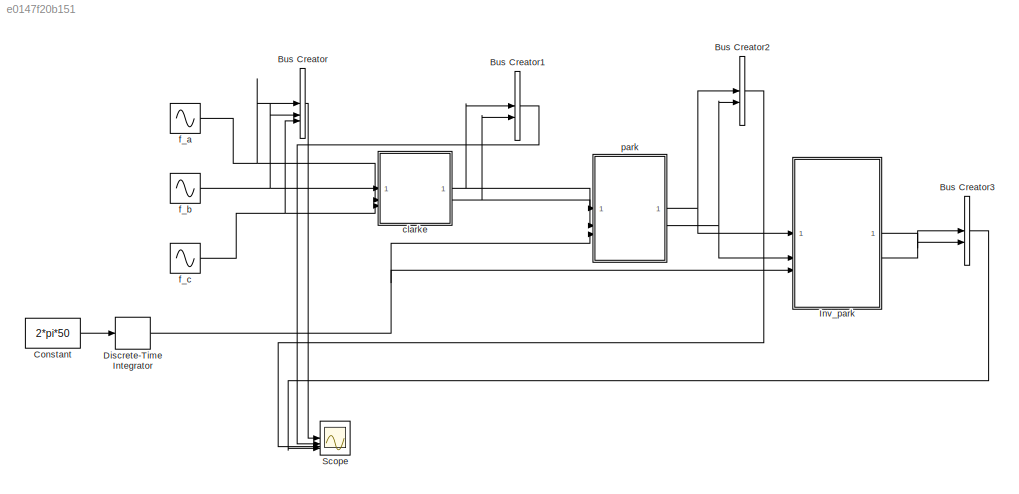
MODEL slx_e0147f20b151
KIND model
CONFIG AbsTol = auto
CONFIG EnableMultiTasking = off
CONFIG FixedStep = auto
CONFIG MaxStep = auto
CONFIG MinStep = auto
CONFIG RelTol = 1e-3
CONFIG SampleTimeConstraint = Unconstrained
CONFIG SolverName = VariableStepAuto
CONFIG StartTime = 0.0
CONFIG StopTime = 10.0
BLOCK [BusCreator] Bus Creator
  DisplayOption = bar
  InheritFromInputs = on
  Inputs = 3
BLOCK [BusCreator] Bus Creator1
  DisplayOption = bar
  InheritFromInputs = on
  Inputs = 2
BLOCK [BusCreator] Bus Creator2
  DisplayOption = bar
  InheritFromInputs = on
  Inputs = 2
BLOCK [BusCreator] Bus Creator3
  DisplayOption = bar
  InheritFromInputs = on
  Inputs = 2
BLOCK [Constant] Constant
  Value = 2*pi*50
BLOCK [DiscreteIntegrator] Discrete-Time Integrator
  ICPrevOutput = DiscIntNeverNeededParam
  ICPrevScaledInput = DiscIntNeverNeededParam
  InitialConditionSetting = Auto
  SampleTime = -1
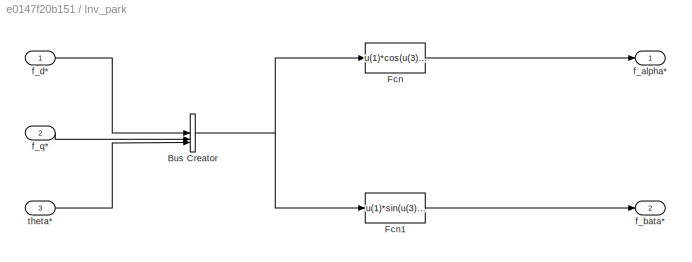
BLOCK [SubSystem] Inv_park
BLOCK [BusCreator] Inv_park/Bus Creator
  DisplayOption = bar
  InheritFromInputs = on
  Inputs = 3
BLOCK [Fcn] Inv_park/Fcn
  Expr = u(1)*cos(u(3))-u(2)*sin(u(3))
BLOCK [Fcn] Inv_park/Fcn1
  Expr = u(1)*sin(u(3))+u(2)*cos(u(3))
BLOCK [Outport] Inv_park/f_alpha*
BLOCK [Outport] Inv_park/f_bata*
  Port = 2
BLOCK [Inport] Inv_park/f_d*
BLOCK [Inport] Inv_park/f_q*
  Port = 2
BLOCK [Inport] Inv_park/theta*
  Port = 3
BLOCK [Scope] Scope
  Floating = off
  NumInputPorts = 4
  ScopeSpecificationString = Simulink.scopes.TimeScopeBlockCfg('CurrentConfiguration', extmgr.ConfigurationSet(extmgr.Configuration('Core','General UI',true),extmgr.Configuration('Core','Source UI',true),extmgr.Configuration('Sources','WiredSimulink',true),extmgr.Configuration('Visuals','Time Domain',true,'SerializedDisplays',{struct('MinYLimReal','-1.25','MaxYLimReal','1.25','YLabelReal','','MinYLimMag','0.00000','MaxYLimMag...<+3491ch>
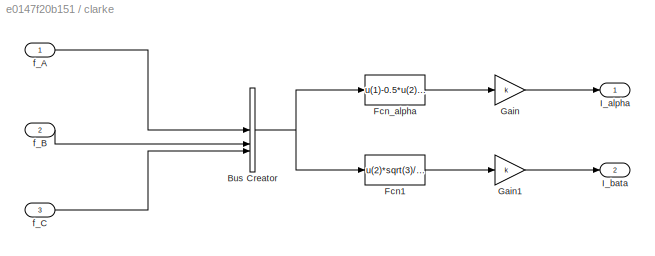
BLOCK [SubSystem] clarke
BLOCK [BusCreator] clarke/Bus Creator
  DisplayOption = bar
  InheritFromInputs = on
  Inputs = 3
BLOCK [Fcn] clarke/Fcn1
  Expr = u(2)*sqrt(3)/2-u(3)*sqrt(3)/2
BLOCK [Fcn] clarke/Fcn_alpha
  Expr = u(1)-0.5*u(2)-0.5*u(3)
BLOCK [Gain] clarke/Gain
  Gain = k
BLOCK [Gain] clarke/Gain1
  Gain = k
BLOCK [Outport] clarke/I_alpha
BLOCK [Outport] clarke/I_bata
  Port = 2
BLOCK [Inport] clarke/f_A
BLOCK [Inport] clarke/f_B
  Port = 2
BLOCK [Inport] clarke/f_C
  Port = 3
BLOCK [Sin] f_a
  Frequency = 2*pi*50
  NameLocation = left
  SampleTime = 0.00001
BLOCK [Sin] f_b
  Frequency = 2*pi*50
  NameLocation = left
  Phase = -pi*2/3
  SampleTime = 0.00001
BLOCK [Sin] f_c
  Frequency = 2*pi*50
  NameLocation = left
  Phase = pi*2/3
  SampleTime = 0.00001
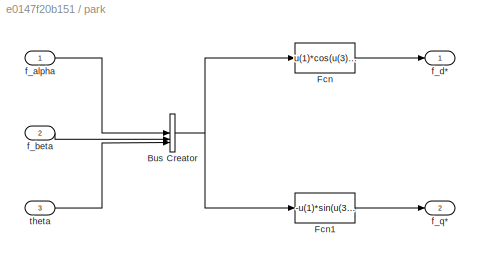
BLOCK [SubSystem] park
BLOCK [BusCreator] park/Bus Creator
  DisplayOption = bar
  InheritFromInputs = on
  Inputs = 3
BLOCK [Fcn] park/Fcn
  Expr = u(1)*cos(u(3))+u(2)*sin(u(3))
BLOCK [Fcn] park/Fcn1
  Expr = -u(1)*sin(u(3))+u(2)*cos(u(3))
BLOCK [Inport] park/f_alpha
BLOCK [Inport] park/f_beta
  Port = 2
BLOCK [Outport] park/f_d*
BLOCK [Outport] park/f_q*
  Port = 2
BLOCK [Inport] park/theta
  Port = 3
LINE Bus Creator1:1 -> Scope:2
LINE Bus Creator2:1 -> Scope:3
LINE Bus Creator3:1 -> Scope:4
LINE Bus Creator:1 -> Scope:1
LINE Constant:1 -> Discrete-Time Integrator:1
NET Discrete-Time Integrator:1 -> Inv_park:3, park:3
NET Inv_park/Bus Creator:1 -> Inv_park/Fcn1:1, Inv_park/Fcn:1
LINE Inv_park/Fcn1:1 -> Inv_park/f_bata*:1
LINE Inv_park/Fcn:1 -> Inv_park/f_alpha*:1
LINE Inv_park/f_d*:1 -> Inv_park/Bus Creator:1
LINE Inv_park/f_q*:1 -> Inv_park/Bus Creator:2
LINE Inv_park/theta*:1 -> Inv_park/Bus Creator:3
LINE Inv_park:1 -> Bus Creator3:1
LINE Inv_park:2 -> Bus Creator3:2
NET clarke/Bus Creator:1 -> clarke/Fcn1:1, clarke/Fcn_alpha:1
LINE clarke/Fcn1:1 -> clarke/Gain1:1
LINE clarke/Fcn_alpha:1 -> clarke/Gain:1
LINE clarke/Gain1:1 -> clarke/I_bata:1
LINE clarke/Gain:1 -> clarke/I_alpha:1
LINE clarke/f_A:1 -> clarke/Bus Creator:1
LINE clarke/f_B:1 -> clarke/Bus Creator:2
LINE clarke/f_C:1 -> clarke/Bus Creator:3
NET clarke:1 -> Bus Creator1:1, park:1
NET clarke:2 -> Bus Creator1:2, park:2
NET f_a:1 -> Bus Creator:1, clarke:1
NET f_b:1 -> Bus Creator:2, clarke:2
NET f_c:1 -> Bus Creator:3, clarke:3
NET park/Bus Creator:1 -> park/Fcn1:1, park/Fcn:1
LINE park/Fcn1:1 -> park/f_q*:1
LINE park/Fcn:1 -> park/f_d*:1
LINE park/f_alpha:1 -> park/Bus Creator:1
LINE park/f_beta:1 -> park/Bus Creator:2
LINE park/theta:1 -> park/Bus Creator:3
NET park:1 -> Bus Creator2:1, Inv_park:1
NET park:2 -> Bus Creator2:2, Inv_park:2
note: NET lines group one-source signal fan-out (src -> all destinations, sorted); 1:1 wires keep LINE
